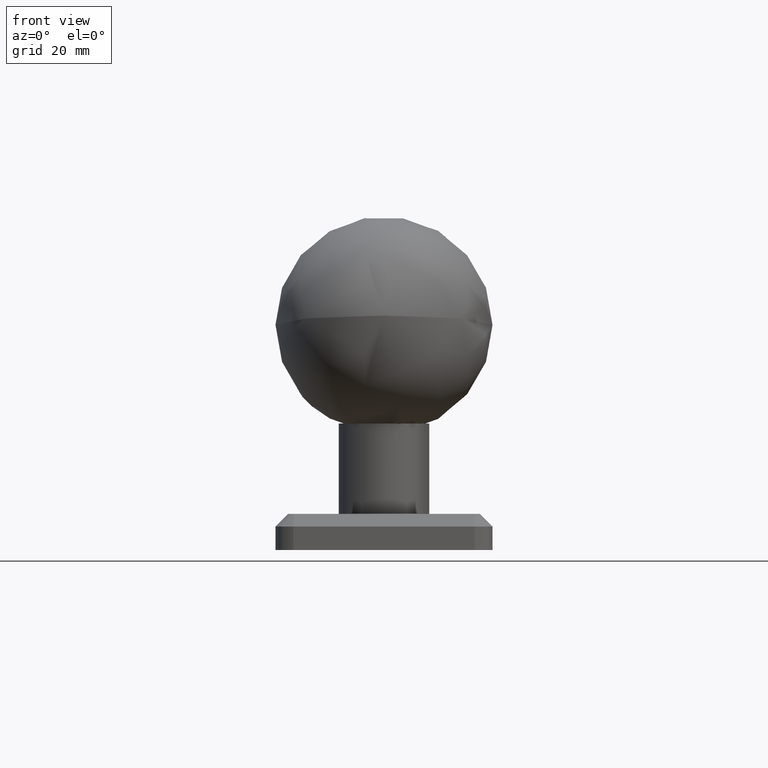
[diagram: clean part render]
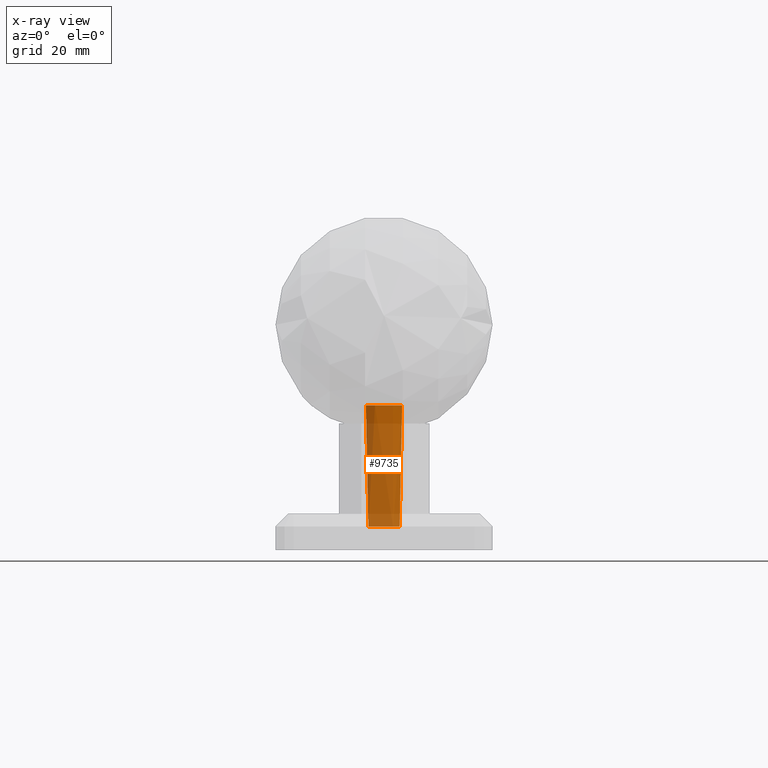
[diagram: x-ray — body ghosted, one internal face saturated and labeled with its STEP entity id]
A machine part, front view, then the same camera in x-ray: the body is ghosted and one INTERNAL B-rep face — a face not visible from any outside direction — is saturated and labeled: STEP entity #9735.
In plain terms, the highlighted cylindrical surface (bore or boss wall) has radius 5 mm, axis along (-0, 0, -1).
Its self-contained STEP definition (entity closure, byte-faithful):
#1182 = CARTESIAN_POINT ( 'NONE',  ( 0.0000000000000000000, 0.0000000000000000000, 0.0000000000000000000 ) ) ;
#2015 = VERTEX_POINT ( 'NONE', #7364 ) ;
#2587 = FACE_OUTER_BOUND ( 'NONE', #15421, .T. ) ;
#4315 = DIRECTION ( 'NONE',  ( -0.0000000000000000000, 1.224646799147353200E-016, -1.000000000000000000 ) ) ;
#4991 = CYLINDRICAL_SURFACE ( 'NONE', #8753, 5.000000000000000000 ) ;
#5241 = CARTESIAN_POINT ( 'NONE',  ( 0.0000000000000000000, -6.735557395310444000E-016, 5.500000000000002700 ) ) ;
#5407 = EDGE_LOOP ( 'NONE', ( #11518 ) ) ;
#6195 = FACE_OUTER_BOUND ( 'NONE', #5407, .T. ) ;
#7364 = CARTESIAN_POINT ( 'NONE',  ( 0.0000000000000000000, -5.000000000000005300, 39.00000000000000700 ) ) ;
#8281 = DIRECTION ( 'NONE',  ( 0.0000000000000000000, 1.000000000000000000, 1.734723475976808300E-016 ) ) ;
#8545 = CIRCLE ( 'NONE', #13759, 4.999999999999996400 ) ;
#8727 = VERTEX_POINT ( 'NONE', #18369 ) ;
#8753 = AXIS2_PLACEMENT_3D ( 'NONE', #1182, #4315, #19879 ) ;
#9111 = EDGE_CURVE ( 'NONE', #2015, #2015, #10477, .T. ) ;
#9735 = ADVANCED_FACE ( 'NONE', ( #6195, #2587 ), #4991, .T. ) ;
#10477 = CIRCLE ( 'NONE', #11524, 5.000000000000000000 ) ;
#11518 = ORIENTED_EDGE ( 'NONE', *, *, #9111, .T. ) ;
#11524 = AXIS2_PLACEMENT_3D ( 'NONE', #18773, #15689, #15878 ) ;
#13759 = AXIS2_PLACEMENT_3D ( 'NONE', #5241, #16095, #8281 ) ;
#15421 = EDGE_LOOP ( 'NONE', ( #18715 ) ) ;
#15689 = DIRECTION ( 'NONE',  ( -0.0000000000000000000, 1.224646799147350200E-016, -1.000000000000000000 ) ) ;
#15878 = DIRECTION ( 'NONE',  ( 0.0000000000000000000, -1.000000000000000000, 0.0000000000000000000 ) ) ;
#16095 = DIRECTION ( 'NONE',  ( -0.0000000000000000000, 1.224646799147353000E-016, -1.000000000000000000 ) ) ;
#16893 = EDGE_CURVE ( 'NONE', #8727, #8727, #8545, .T. ) ;
#18369 = CARTESIAN_POINT ( 'NONE',  ( 0.0000000000000000000, 4.999999999999995600, 5.500000000000003600 ) ) ;
#18715 = ORIENTED_EDGE ( 'NONE', *, *, #16893, .F. ) ;
#18773 = CARTESIAN_POINT ( 'NONE',  ( 0.0000000000000000000, -4.776122516674678700E-015, 39.00000000000000700 ) ) ;
#19879 = DIRECTION ( 'NONE',  ( 0.0000000000000000000, 1.000000000000000000, 1.224646799147353200E-016 ) ) ;